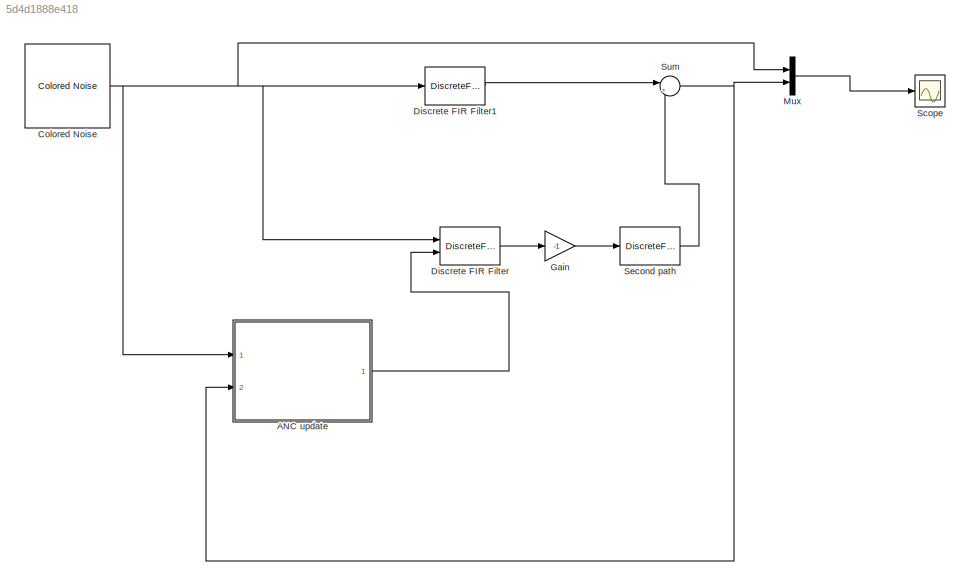
MODEL slx_5d4d1888e418
KIND model
CONFIG AbsTol = auto
CONFIG EnableMultiTasking = off
CONFIG FixedStep = auto
CONFIG MaxStep = auto
CONFIG MinStep = auto
CONFIG RelTol = 1e-3
CONFIG SampleTimeConstraint = Unconstrained
CONFIG SolverName = VariableStepAuto
CONFIG StartTime = 0.0
CONFIG StopTime = 10.0
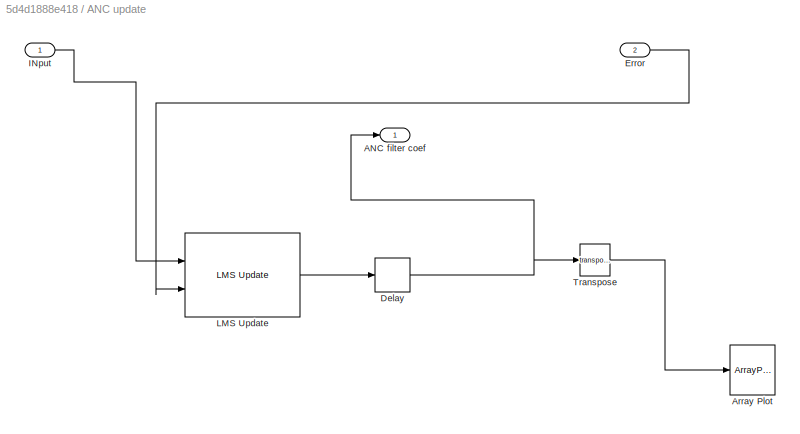
BLOCK [SubSystem] ANC update
  Ports = [2, 1]
  RequestExecContextInheritance = off
BLOCK [Outport] ANC update/ANC filter coef
BLOCK [ArrayPlot] ANC update/Array Plot
  Ports = [1]
  ScopeSpecificationString = dsp.scopes.ArrayPlotBlockSpecification('CurrentConfiguration', extmgr.ConfigurationSet(extmgr.Configuration('Core','General UI',true),extmgr.Configuration('Core','Source UI',true),extmgr.Configuration('Sources','WiredSimulink',true),extmgr.Configuration('Visuals','Array Plot',true,'DisplayPropertyDefaults',struct('MinYLimReal','-0.5125','MaxYLimReal','0.6125','YLabelReal','Amplitude','MinYLimMag',...<+1363ch>
BLOCK [Delay] ANC update/Delay
  DelayLength = 1
  InitialCondition = 0
  InputPortMap = u0
  Ports = [1, 1]
BLOCK [Inport] ANC update/Error
  Port = 2
BLOCK [Inport] ANC update/INput
BLOCK [Reference] ANC update/LMS Update  REF=dspadpt3/LMS Update
  Ports = [2, 1]
  SourceBlock = dspadpt3/LMS Update
  SourceProductBaseCode = DS
  SourceType = dsp.private.LMSUpdate
BLOCK [Math] ANC update/Transpose
  Operator = transpose
  Ports = [1, 1]
BLOCK [Reference] Colored Noise  REF=dspsrcs4/Colored Noise
  Ports = [0, 1]
  SourceBlock = dspsrcs4/Colored Noise
  SourceProductBaseCode = DS
  SourceType = dsp.simulink.ColoredNoise
BLOCK [DiscreteFir] Discrete FIR Filter
  CoefSource = Input port
  InputPortMap = u0,u1
  InputProcessing = Columns as channels (frame based)
  OutputPortMap = o0
  Ports = [2, 1]
BLOCK [DiscreteFir] Discrete FIR Filter1
  Coefficients = [0.5 0.1 0.2 0.4 0 0 -0.125 0.3 0.5 0 0.075 -0.25 -0.4]
  InputPortMap = u0
  OutputPortMap = o0
  Ports = [1, 1]
BLOCK [Gain] Gain
  Gain = -1
BLOCK [Mux] Mux
  DisplayOption = bar
  Inputs = 2
  Ports = [2, 1]
BLOCK [Scope] Scope
  Floating = off
  NumInputPorts = 1
  Ports = [1]
  ScopeSpecificationString = Simulink.scopes.TimeScopeBlockCfg('CurrentConfiguration', extmgr.ConfigurationSet(extmgr.Configuration('Core','General UI',true),extmgr.Configuration('Core','Source UI',true),extmgr.Configuration('Sources','WiredSimulink',true),extmgr.Configuration('Visuals','Time Domain',true,'SerializedDisplays',{struct('MinYLimReal','-128436.87121','MaxYLimReal','135422.28693','YLabelReal','','MinYLimMag','    ...<+1454ch>
BLOCK [DiscreteFir] Second path
  Coefficients = [0 0 -0.5 -0.5 -0.3 0.2 -0.1 0.5 -0.5]
  InputPortMap = u0
  OutputPortMap = o0
  Ports = [1, 1]
BLOCK [Sum] Sum
  Inputs = |++
  Ports = [2, 1]
NET ANC update/Delay:1 -> ANC update/ANC filter coef:1, ANC update/Transpose:1
LINE ANC update/Error:1 -> ANC update/LMS Update:2
LINE ANC update/INput:1 -> ANC update/LMS Update:1
LINE ANC update/LMS Update:1 -> ANC update/Delay:1
LINE ANC update/Transpose:1 -> ANC update/Array Plot:1
LINE ANC update:1 -> Discrete FIR Filter:2
NET Colored Noise:1 -> ANC update:1, Discrete FIR Filter1:1, Discrete FIR Filter:1, Mux:1
LINE Discrete FIR Filter1:1 -> Sum:1
LINE Discrete FIR Filter:1 -> Gain:1
LINE Gain:1 -> Second path:1
LINE Mux:1 -> Scope:1
LINE Second path:1 -> Sum:2
NET Sum:1 -> ANC update:2, Mux:2
note: NET lines group one-source signal fan-out (src -> all destinations, sorted); 1:1 wires keep LINE
